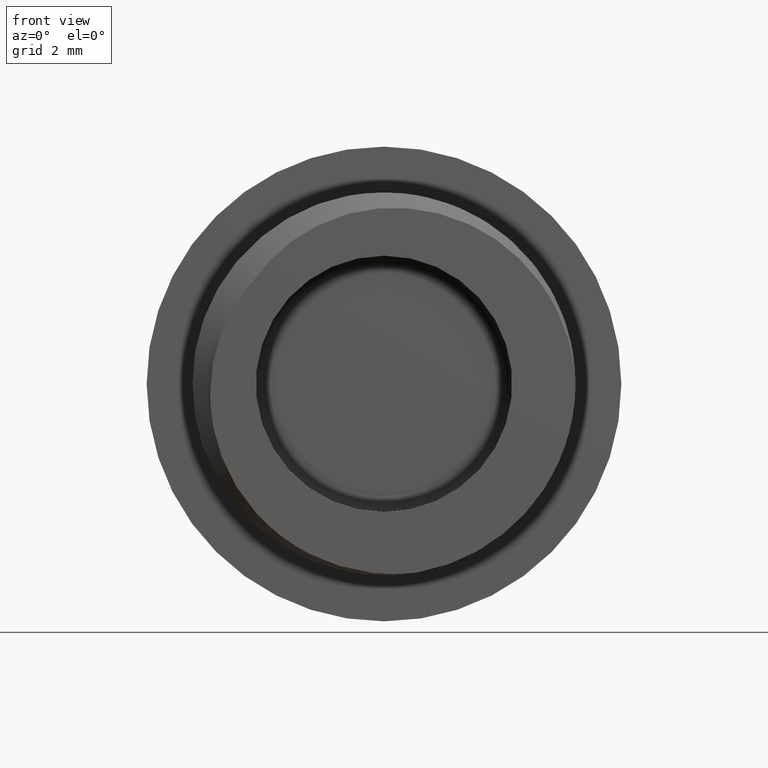
[diagram: clean part render]
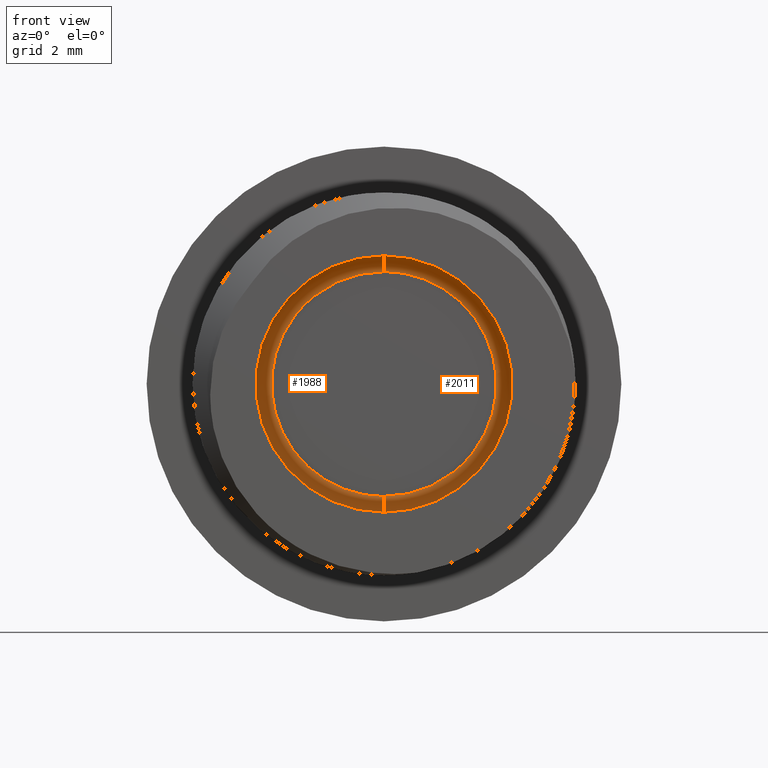
[diagram: same view with one multi-face feature highlighted, each face labeled with its STEP entity id]
A machine part, front view. The highlighted faces form ONE feature: a constant-radius fillet chain: 2 tangent blend faces with common blend radius 0.5 mm. The faces share edges in the B-rep.
Their STEP definitions:
[1] entity #1988 (Torus):
#1186 = CARTESIAN_POINT ( 'NONE',  ( 2.173748068486551900E-016, 4.500000000000002700, 0.0000000000000000000 ) ) ;
#1192 = DIRECTION ( 'NONE',  ( 0.0000000000000000000, 0.0000000000000000000, 1.000000000000000000 ) ) ;
#1198 = FACE_OUTER_BOUND ( 'NONE', #1655, .T. ) ;
#1200 = DIRECTION ( 'NONE',  ( -0.0000000000000000000, 1.000000000000000000, 0.0000000000000000000 ) ) ;
#1203 = CARTESIAN_POINT ( 'NONE',  ( 2.173748068486551900E-016, 4.500000000000002700, 3.549999999999999800 ) ) ;
#1212 = DIRECTION ( 'NONE',  ( -1.000000000000000000, -0.0000000000000000000, 0.0000000000000000000 ) ) ;
#1214 = CARTESIAN_POINT ( 'NONE',  ( 6.521244205459656300E-016, 4.500000000000002700, -3.549999999999999800 ) ) ;
#1215 = DIRECTION ( 'NONE',  ( 1.000000000000000000, 0.0000000000000000000, 1.224646799147353200E-016 ) ) ;
#1220 = DIRECTION ( 'NONE',  ( 1.224646799147354400E-016, 0.0000000000000000000, -1.000000000000000000 ) ) ;
#1221 = DIRECTION ( 'NONE',  ( 0.0000000000000000000, 0.0000000000000000000, 1.000000000000000000 ) ) ;
#1319 = DIRECTION ( 'NONE',  ( -0.0000000000000000000, -1.000000000000000000, -0.0000000000000000000 ) ) ;
#1322 = CARTESIAN_POINT ( 'NONE',  ( 0.0000000000000000000, 4.500000000000002700, 0.0000000000000000000 ) ) ;
#1330 = DIRECTION ( 'NONE',  ( 0.0000000000000000000, 0.0000000000000000000, -1.000000000000000000 ) ) ;
#1386 = CARTESIAN_POINT ( 'NONE',  ( -2.163259353222597400, 5.000000000000000900, 2.857399717818977200 ) ) ;
#1387 = CARTESIAN_POINT ( 'NONE',  ( -3.467046276903899700, 4.999999999999999100, 0.8863273342963518000 ) ) ;
#1388 = CARTESIAN_POINT ( 'NONE',  ( -1.292476309900976600, 5.000000000000000000, 3.306398502538598000 ) ) ;
#1389 = CARTESIAN_POINT ( 'NONE',  ( -3.277835532049868700, 4.999999999999999100, 1.363367318736751000 ) ) ;
#1391 = CARTESIAN_POINT ( 'NONE',  ( -3.289414261037898700, 5.000000000000000000, 1.335130861087021200 ) ) ;
#1393 = CARTESIAN_POINT ( 'NONE',  ( -3.550130511475218000, 5.000000000000000000, 0.4521024567216649900 ) ) ;
#1394 = CARTESIAN_POINT ( 'NONE',  ( -3.549934744262391600, 4.999999999999999100, -0.2260512283607852800 ) ) ;
#1395 = CARTESIAN_POINT ( 'NONE',  ( -2.683713933207058800, 5.000000000000000000, 2.336643750908888400 ) ) ;
#1396 = CARTESIAN_POINT ( 'NONE',  ( -3.321098070205224900, 4.999999999999999100, -1.254273658910485700 ) ) ;
#1397 = CARTESIAN_POINT ( 'NONE',  ( -3.306398502538654000, 4.999999999999999100, -1.292476309900894000 ) ) ;
#1398 = CARTESIAN_POINT ( 'NONE',  ( -1.763053308342195500, 5.000000000000000900, 3.119947388228582400 ) ) ;
#1400 = CARTESIAN_POINT ( 'NONE',  ( -1.122622147386116200, 5.000000000000000000, 3.368803243336907700 ) ) ;
#1401 = CARTESIAN_POINT ( 'NONE',  ( -3.518729361055640500, 5.000000000000000900, -0.5589316769994775400 ) ) ;
#1402 = CARTESIAN_POINT ( 'NONE',  ( -3.311044783158749300, 5.000000000000000900, -1.280529143591228900 ) ) ;
#1403 = CARTESIAN_POINT ( 'NONE',  ( -3.368853222917791000, 5.000000000000000000, -1.122496005790683200 ) ) ;
#1404 = CARTESIAN_POINT ( 'NONE',  ( -3.217415167481888700, 4.999999999999999100, 1.502915033894946900 ) ) ;
#1406 = CARTESIAN_POINT ( 'NONE',  ( 0.0000000000000000000, 5.000000000000000000, 3.549999999999999800 ) ) ;
#1407 = CARTESIAN_POINT ( 'NONE',  ( -1.214909598416724400, 4.999999999999999100, 3.335908198658833300 ) ) ;
#1408 = CARTESIAN_POINT ( 'NONE',  ( -2.336643489474578700, 4.999999999999999100, -2.683714194490062000 ) ) ;
#1409 = CARTESIAN_POINT ( 'NONE',  ( -1.693187951321371200, 5.000000000000000000, -3.124953415632012000 ) ) ;
#1410 = CARTESIAN_POINT ( 'NONE',  ( -1.502914833734295700, 4.999999999999998200, -3.217415367526695700 ) ) ;
#1411 = CARTESIAN_POINT ( 'NONE',  ( -1.405563713489798700, 4.999999999999999100, -3.260223024480378000 ) ) ;
#1412 = CARTESIAN_POINT ( 'NONE',  ( -1.363367255931238600, 5.000000000000000000, -3.277835594819030500 ) ) ;
#1413 = CARTESIAN_POINT ( 'NONE',  ( -1.335130828918343000, 5.000000000000000000, -3.289414293187957300 ) ) ;
#1414 = CARTESIAN_POINT ( 'NONE',  ( -1.280549416347673200, 5.000000000000000900, 3.311036750726092500 ) ) ;
#1415 = CARTESIAN_POINT ( 'NONE',  ( -3.295551662267489000, 5.000000000000000000, 1.319873996589926700 ) ) ;
#1416 = CARTESIAN_POINT ( 'NONE',  ( -1.254313239053980000, 5.000000000000000000, 3.321082387836723300 ) ) ;
#1417 = CARTESIAN_POINT ( 'NONE',  ( -3.335934973434314000, 5.000000000000000000, -1.214842022562008700 ) ) ;
#1419 = CARTESIAN_POINT ( 'NONE',  ( -3.124953072698056100, 5.000000000000000900, 1.693188294453915800 ) ) ;
#1420 = CARTESIAN_POINT ( 'NONE',  ( -2.857400240687639300, 5.000000000000000000, -2.163258830656539900 ) ) ;
#1421 = CARTESIAN_POINT ( 'NONE',  ( -1.319843138786870500, 5.000000000000000000, -3.295563877536066900 ) ) ;
#1422 = CARTESIAN_POINT ( 'NONE',  ( -2.056017694887862600, 4.999999999999999100, -2.912642959893369200 ) ) ;
#1423 = CARTESIAN_POINT ( 'NONE',  ( -0.8873147839940784800, 5.000000000000000000, -3.466655388309403100 ) ) ;
#1424 = CARTESIAN_POINT ( 'NONE',  ( -0.4517360443458536800, 5.000000000000000900, -3.549739232052197700 ) ) ;
#1425 = CARTESIAN_POINT ( 'NONE',  ( 8.673617379884035500E-016, 5.000000000000000000, -3.549999999999999800 ) ) ;
#1428 = CARTESIAN_POINT ( 'NONE',  ( -3.427884956347172700, 5.000000000000001800, -0.9364485110818533400 ) ) ;
#1431 = CARTESIAN_POINT ( 'NONE',  ( -3.119947388227327000, 4.999999999999999100, -1.763053308343437000 ) ) ;
#1438 = CARTESIAN_POINT ( 'NONE',  ( -0.2262159847303103500, 5.000000000000000000, 3.549869464809825500 ) ) ;
#1439 = CARTESIAN_POINT ( 'NONE',  ( -2.912642502648096400, 4.999999999999999100, 2.056018152397917300 ) ) ;
#1441 = CARTESIAN_POINT ( 'NONE',  ( -0.5592200006461245400, 5.000000000000000900, 3.518615122013648600 ) ) ;
#1442 = CARTESIAN_POINT ( 'NONE',  ( -0.9366647538168509900, 4.999999999999998200, 3.427799277065670200 ) ) ;
#1443 = CARTESIAN_POINT ( 'NONE',  ( -3.260222917313517300, 4.999999999999999100, 1.405563820718721500 ) ) ;
#1609 = ORIENTED_EDGE ( 'NONE', *, *, #2006, .T. ) ;
#1655 = EDGE_LOOP ( 'NONE', ( #1609, #1730, #1714, #1680 ) ) ;
#1680 = ORIENTED_EDGE ( 'NONE', *, *, #1990, .F. ) ;
#1714 = ORIENTED_EDGE ( 'NONE', *, *, #2022, .F. ) ;
#1730 = ORIENTED_EDGE ( 'NONE', *, *, #1993, .T. ) ;
#1752 = VERTEX_POINT ( 'NONE', #1844 ) ;
#1786 = VERTEX_POINT ( 'NONE', #1801 ) ;
#1795 = VERTEX_POINT ( 'NONE', #1852 ) ;
#1801 = CARTESIAN_POINT ( 'NONE',  ( 0.0000000000000000000, 5.000000000000000000, 3.549999999999999800 ) ) ;
#1804 = CARTESIAN_POINT ( 'NONE',  ( 7.133567605033331100E-016, 4.500000000000002700, -4.049999999999999800 ) ) ;
#1812 = VERTEX_POINT ( 'NONE', #1804 ) ;
#1844 = CARTESIAN_POINT ( 'NONE',  ( 8.673617379884035500E-016, 5.000000000000000000, -3.549999999999999800 ) ) ;
#1852 = CARTESIAN_POINT ( 'NONE',  ( 2.173748068486551900E-016, 4.500000000000002700, 4.049999999999999800 ) ) ;
#1924 = B_SPLINE_CURVE_WITH_KNOTS ( 'NONE', 3,
 ( #1406, #1438, #1441, #1442, #1400, #1407, #1416, #1414, #1388, #1398, #1386, #1395, #1439, #1419, #1404, #1443, #1389, #1391, #1415, #1387, #1393, #1394, #1401, #1428, #1403, #1417, #1396, #1402, #1397, #1431, #1420, #1408, #1422, #1409, #1410, #1411, #1412, #1413, #1421, #1423, #1424, #1425 ),
 .UNSPECIFIED., .F., .F.,
 ( 4, 1, 1, 1, 1, 2, 2, 2, 1, 1, 1, 1, 2, 2, 2, 1, 1, 1, 1, 2, 2, 2, 1, 1, 1, 1, 2, 2, 4 ),
 ( 0.0000000000000000000, 0.06249999999999868200, 0.09374999999999802900, 0.1093749999999977200, 0.1171874999999976300, 0.1210937499999976000, 0.1249999999999975900, 0.2499999999999970600, 0.3124999999999968400, 0.3437499999999967200, 0.3593749999999966700, 0.3671874999999966700, 0.3710937499999967200, 0.3749999999999967200, 0.4999999999999976700, 0.5624999999999981100, 0.5937499999999983300, 0.6093749999999984500, 0.6171874999999985600, 0.6210937499999985600, 0.6249999999999985600, 0.7499999999999983300, 0.8124999999999982200, 0.8437499999999981100, 0.8593749999999981100, 0.8671874999999980000, 0.8710937499999980000, 0.8749999999999981100, 1.000000000000000000 ),
 .UNSPECIFIED. ) ;
#1988 = ADVANCED_FACE ( 'NONE', ( #1198 ), #2124, .F. ) ;
#1990 = EDGE_CURVE ( 'NONE', #1795, #1786, #2146, .T. ) ;
#1993 = EDGE_CURVE ( 'NONE', #1812, #1752, #2113, .T. ) ;
#2006 = EDGE_CURVE ( 'NONE', #1795, #1812, #2153, .T. ) ;
#2022 = EDGE_CURVE ( 'NONE', #1786, #1752, #1924, .T. ) ;
#2113 = CIRCLE ( 'NONE', #2121, 0.4999999999999991700 ) ;
#2120 = AXIS2_PLACEMENT_3D ( 'NONE', #1203, #1212, #1192 ) ;
#2121 = AXIS2_PLACEMENT_3D ( 'NONE', #1214, #1215, #1220 ) ;
#2124 = TOROIDAL_SURFACE ( 'NONE', #2127, 3.549999999999999800, 0.4999999999999993300 ) ;
#2127 = AXIS2_PLACEMENT_3D ( 'NONE', #1186, #1200, #1221 ) ;
#2146 = CIRCLE ( 'NONE', #2120, 0.4999999999999991700 ) ;
#2153 = CIRCLE ( 'NONE', #2158, 4.049999999999999800 ) ;
#2158 = AXIS2_PLACEMENT_3D ( 'NONE', #1322, #1319, #1330 ) ;
[2] entity #2011 (Torus):
#746 = DIRECTION ( 'NONE',  ( 0.0000000000000000000, 0.0000000000000000000, -1.000000000000000000 ) ) ;
#765 = CARTESIAN_POINT ( 'NONE',  ( 0.0000000000000000000, 4.500000000000002700, 0.0000000000000000000 ) ) ;
#778 = DIRECTION ( 'NONE',  ( -0.0000000000000000000, -1.000000000000000000, -0.0000000000000000000 ) ) ;
#975 = CARTESIAN_POINT ( 'NONE',  ( 3.518729361055971800, 5.000000000000000000, 0.5589316769960415200 ) ) ;
#976 = CARTESIAN_POINT ( 'NONE',  ( 3.427884956347416100, 5.000000000000001800, 0.9364485110792846200 ) ) ;
#979 = CARTESIAN_POINT ( 'NONE',  ( 1.763053308342519900, 4.999999999999999100, -3.119947388228049500 ) ) ;
#982 = CARTESIAN_POINT ( 'NONE',  ( 3.295551662267502700, 5.000000000000000900, -1.319873996589820300 ) ) ;
#983 = CARTESIAN_POINT ( 'NONE',  ( 2.912642502646690000, 5.000000000000000900, -2.056018152399505800 ) ) ;
#984 = CARTESIAN_POINT ( 'NONE',  ( 3.368853222917927300, 4.999999999999999100, 1.122496005789195500 ) ) ;
#985 = CARTESIAN_POINT ( 'NONE',  ( 1.280549416347723300, 5.000000000000001800, -3.311036750726096000 ) ) ;
#988 = CARTESIAN_POINT ( 'NONE',  ( 3.335934973434381900, 5.000000000000000900, 1.214842022561225100 ) ) ;
#989 = CARTESIAN_POINT ( 'NONE',  ( 3.321098070205260400, 4.999999999999999100, 1.254273658910037600 ) ) ;
#990 = CARTESIAN_POINT ( 'NONE',  ( 3.217415167481273200, 4.999999999999998200, -1.502915033895634300 ) ) ;
#991 = CARTESIAN_POINT ( 'NONE',  ( 3.306398502538545200, 4.999999999999999100, 1.292476309901062800 ) ) ;
#992 = CARTESIAN_POINT ( 'NONE',  ( 1.122622147386469700, 5.000000000000000000, -3.368803243336909500 ) ) ;
#993 = CARTESIAN_POINT ( 'NONE',  ( 3.119947388230396100, 4.999999999999999100, 1.763053308338925000 ) ) ;
#996 = CARTESIAN_POINT ( 'NONE',  ( 3.277835532049679500, 5.000000000000000900, -1.363367318736959000 ) ) ;
#998 = CARTESIAN_POINT ( 'NONE',  ( 3.289414261037802300, 5.000000000000001800, -1.335130861087121500 ) ) ;
#999 = CARTESIAN_POINT ( 'NONE',  ( 1.254313239054085000, 5.000000000000000000, -3.321082387836726800 ) ) ;
#1001 = CARTESIAN_POINT ( 'NONE',  ( 3.311044783158759100, 5.000000000000000900, 1.280529143591011800 ) ) ;
#1002 = CARTESIAN_POINT ( 'NONE',  ( 2.857400240683476900, 5.000000000000000000, 2.163258830659245700 ) ) ;
#1004 = CARTESIAN_POINT ( 'NONE',  ( 3.550130511474837800, 5.000000000000000000, -0.4521024567176941700 ) ) ;
#1009 = CARTESIAN_POINT ( 'NONE',  ( 8.673617379884035500E-016, 5.000000000000000000, -3.549999999999999800 ) ) ;
#1010 = CARTESIAN_POINT ( 'NONE',  ( 3.260222917313188300, 4.999999999999999100, -1.405563820719083900 ) ) ;
#1011 = CARTESIAN_POINT ( 'NONE',  ( 2.336643489476632600, 5.000000000000001800, 2.683714194488737300 ) ) ;
#1012 = CARTESIAN_POINT ( 'NONE',  ( 1.214909598416909400, 5.000000000000000900, -3.335908198658835000 ) ) ;
#1013 = CARTESIAN_POINT ( 'NONE',  ( 2.056017694891473000, 4.999999999999999100, 2.912642959891032400 ) ) ;
#1014 = CARTESIAN_POINT ( 'NONE',  ( 1.693187951324076200, 5.000000000000000000, 3.124953415630258300 ) ) ;
#1016 = CARTESIAN_POINT ( 'NONE',  ( 2.683713933206254500, 4.999999999999999100, -2.336643750909796600 ) ) ;
#1018 = CARTESIAN_POINT ( 'NONE',  ( 3.124953072697001800, 4.999999999999999100, -1.693188294455102400 ) ) ;
#1019 = CARTESIAN_POINT ( 'NONE',  ( 3.549934744262582200, 4.999999999999999100, 0.2260512283588307100 ) ) ;
#1020 = CARTESIAN_POINT ( 'NONE',  ( 1.502914833735866200, 4.999999999999999100, 3.217415367525675100 ) ) ;
#1021 = CARTESIAN_POINT ( 'NONE',  ( 1.405563713490631600, 4.999999999999999100, 3.260223024479834000 ) ) ;
#1022 = CARTESIAN_POINT ( 'NONE',  ( 1.363367255931720900, 5.000000000000001800, 3.277835594818713400 ) ) ;
#1025 = CARTESIAN_POINT ( 'NONE',  ( 0.2262159847307808100, 5.000000000000000900, -3.549869464809825500 ) ) ;
#1026 = CARTESIAN_POINT ( 'NONE',  ( 0.9366647538174617300, 5.000000000000000900, -3.427799277065674200 ) ) ;
#1027 = CARTESIAN_POINT ( 'NONE',  ( 1.292476309900957700, 5.000000000000000900, -3.306398502538619300 ) ) ;
#1029 = CARTESIAN_POINT ( 'NONE',  ( 0.5592200006469454400, 5.000000000000000000, -3.518615122013645900 ) ) ;
#1030 = CARTESIAN_POINT ( 'NONE',  ( 3.467046276903522600, 4.999999999999998200, -0.8863273342993770500 ) ) ;
#1032 = CARTESIAN_POINT ( 'NONE',  ( 2.163259353224207300, 4.999999999999999100, -2.857399717817156800 ) ) ;
#1039 = CARTESIAN_POINT ( 'NONE',  ( 0.8873147839964845600, 5.000000000000000000, 3.466655388309408400 ) ) ;
#1050 = CARTESIAN_POINT ( 'NONE',  ( 1.319843138786779100, 4.999999999999999100, 3.295563877536070900 ) ) ;
#1061 = CARTESIAN_POINT ( 'NONE',  ( 0.4517360443482693100, 5.000000000000000000, 3.549739232052199900 ) ) ;
#1065 = CARTESIAN_POINT ( 'NONE',  ( 1.335130828918581700, 4.999999999999999100, 3.289414293187797000 ) ) ;
#1073 = CARTESIAN_POINT ( 'NONE',  ( 0.0000000000000000000, 5.000000000000000000, 3.549999999999999800 ) ) ;
#1192 = DIRECTION ( 'NONE',  ( 0.0000000000000000000, 0.0000000000000000000, 1.000000000000000000 ) ) ;
#1203 = CARTESIAN_POINT ( 'NONE',  ( 2.173748068486551900E-016, 4.500000000000002700, 3.549999999999999800 ) ) ;
#1212 = DIRECTION ( 'NONE',  ( -1.000000000000000000, -0.0000000000000000000, 0.0000000000000000000 ) ) ;
#1214 = CARTESIAN_POINT ( 'NONE',  ( 6.521244205459656300E-016, 4.500000000000002700, -3.549999999999999800 ) ) ;
#1215 = DIRECTION ( 'NONE',  ( 1.000000000000000000, 0.0000000000000000000, 1.224646799147353200E-016 ) ) ;
#1220 = DIRECTION ( 'NONE',  ( 1.224646799147354400E-016, 0.0000000000000000000, -1.000000000000000000 ) ) ;
#1353 = FACE_OUTER_BOUND ( 'NONE', #1600, .T. ) ;
#1354 = DIRECTION ( 'NONE',  ( -0.0000000000000000000, 1.000000000000000000, 0.0000000000000000000 ) ) ;
#1379 = CARTESIAN_POINT ( 'NONE',  ( 2.173748068486551900E-016, 4.500000000000002700, 0.0000000000000000000 ) ) ;
#1381 = DIRECTION ( 'NONE',  ( 0.0000000000000000000, 0.0000000000000000000, 1.000000000000000000 ) ) ;
#1600 = EDGE_LOOP ( 'NONE', ( #1703, #1724, #1673, #1740 ) ) ;
#1673 = ORIENTED_EDGE ( 'NONE', *, *, #1990, .T. ) ;
#1703 = ORIENTED_EDGE ( 'NONE', *, *, #1993, .F. ) ;
#1724 = ORIENTED_EDGE ( 'NONE', *, *, #1935, .T. ) ;
#1740 = ORIENTED_EDGE ( 'NONE', *, *, #1956, .F. ) ;
#1752 = VERTEX_POINT ( 'NONE', #1844 ) ;
#1786 = VERTEX_POINT ( 'NONE', #1801 ) ;
#1795 = VERTEX_POINT ( 'NONE', #1852 ) ;
#1801 = CARTESIAN_POINT ( 'NONE',  ( 0.0000000000000000000, 5.000000000000000000, 3.549999999999999800 ) ) ;
#1804 = CARTESIAN_POINT ( 'NONE',  ( 7.133567605033331100E-016, 4.500000000000002700, -4.049999999999999800 ) ) ;
#1812 = VERTEX_POINT ( 'NONE', #1804 ) ;
#1844 = CARTESIAN_POINT ( 'NONE',  ( 8.673617379884035500E-016, 5.000000000000000000, -3.549999999999999800 ) ) ;
#1852 = CARTESIAN_POINT ( 'NONE',  ( 2.173748068486551900E-016, 4.500000000000002700, 4.049999999999999800 ) ) ;
#1923 = B_SPLINE_CURVE_WITH_KNOTS ( 'NONE', 3,
 ( #1009, #1025, #1029, #1026, #992, #1012, #999, #985, #1027, #979, #1032, #1016, #983, #1018, #990, #1010, #996, #998, #982, #1030, #1004, #1019, #975, #976, #984, #988, #989, #1001, #991, #993, #1002, #1011, #1013, #1014, #1020, #1021, #1022, #1065, #1050, #1039, #1061, #1073 ),
 .UNSPECIFIED., .F., .F.,
 ( 4, 1, 1, 1, 1, 2, 2, 2, 1, 1, 1, 1, 2, 2, 2, 1, 1, 1, 1, 2, 2, 2, 1, 1, 1, 1, 2, 2, 4 ),
 ( 0.0000000000000000000, 0.06249999999999977800, 0.09374999999999963900, 0.1093749999999995800, 0.1171874999999995600, 0.1210937499999995400, 0.1249999999999995300, 0.2499999999999988100, 0.3124999999999983900, 0.3437499999999982200, 0.3593749999999981700, 0.3671874999999981700, 0.3710937499999981100, 0.3749999999999981100, 0.4999999999999968900, 0.5624999999999963400, 0.5937499999999960000, 0.6093749999999958900, 0.6171874999999957800, 0.6210937499999957800, 0.6249999999999957800, 0.7499999999999968900, 0.8124999999999974500, 0.8437499999999976700, 0.8593749999999977800, 0.8671874999999978900, 0.8710937499999980000, 0.8749999999999980000, 1.000000000000000000 ),
 .UNSPECIFIED. ) ;
#1935 = EDGE_CURVE ( 'NONE', #1812, #1795, #2091, .T. ) ;
#1956 = EDGE_CURVE ( 'NONE', #1752, #1786, #1923, .T. ) ;
#1990 = EDGE_CURVE ( 'NONE', #1795, #1786, #2146, .T. ) ;
#1993 = EDGE_CURVE ( 'NONE', #1812, #1752, #2113, .T. ) ;
#2011 = ADVANCED_FACE ( 'NONE', ( #1353 ), #2159, .F. ) ;
#2088 = AXIS2_PLACEMENT_3D ( 'NONE', #765, #778, #746 ) ;
#2091 = CIRCLE ( 'NONE', #2088, 4.049999999999999800 ) ;
#2113 = CIRCLE ( 'NONE', #2121, 0.4999999999999991700 ) ;
#2120 = AXIS2_PLACEMENT_3D ( 'NONE', #1203, #1212, #1192 ) ;
#2121 = AXIS2_PLACEMENT_3D ( 'NONE', #1214, #1215, #1220 ) ;
#2146 = CIRCLE ( 'NONE', #2120, 0.4999999999999991700 ) ;
#2159 = TOROIDAL_SURFACE ( 'NONE', #2163, 3.549999999999999800, 0.4999999999999993300 ) ;
#2163 = AXIS2_PLACEMENT_3D ( 'NONE', #1379, #1354, #1381 ) ;